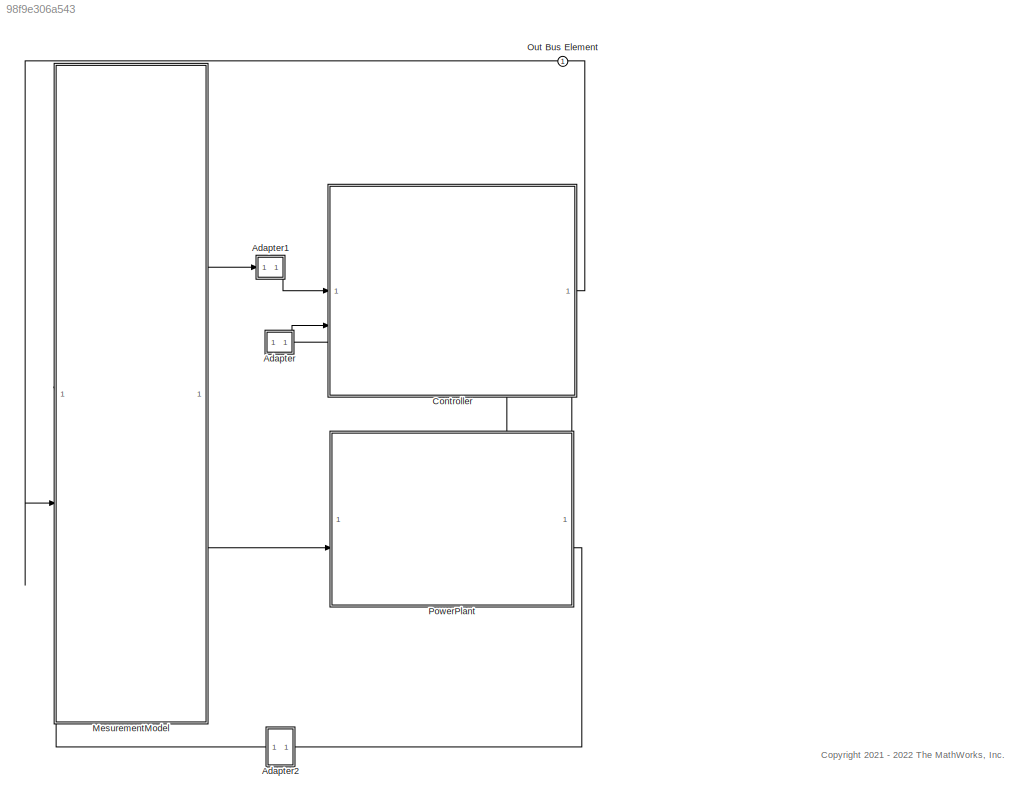
MODEL slx_98f9e306a543
KIND model
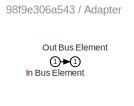
BLOCK [SubSystem] Adapter
  PortSchema = {"entries":[{"content":{"margin":10,"minimumSpacing":15,"sides":[{"content":{"connectorIds":["In1"]},"type":"ConnectorPlacement.EquallySpacedRectSide","uuid":"ac9d3c0d-de45-45d4-a027-00cc2bb40653"},{"content":{"connectorIds":["Out1"],"side":"RIGHT"},"type":"ConnectorPlacement.EquallySpacedRectSide","uuid":"e7d2f5f6-2525-4569-b306-92dbf51e1e04"},{"content":{"side":"TOP"},"type":"ConnectorPlacement....<+254ch>
BLOCK [Inport] Adapter/In Bus Element
BLOCK [Outport] Adapter/Out Bus Element
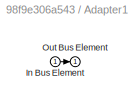
BLOCK [SubSystem] Adapter1
  PortSchema = {"entries":[{"content":{"margin":10,"minimumSpacing":15,"sides":[{"content":{"connectorIds":["In1"]},"type":"ConnectorPlacement.EquallySpacedRectSide","uuid":"ac9d3c0d-de45-45d4-a027-00cc2bb40653"},{"content":{"connectorIds":["Out1"],"side":"RIGHT"},"type":"ConnectorPlacement.EquallySpacedRectSide","uuid":"e7d2f5f6-2525-4569-b306-92dbf51e1e04"},{"content":{"side":"TOP"},"type":"ConnectorPlacement....<+254ch>
BLOCK [Inport] Adapter1/In Bus Element
BLOCK [Outport] Adapter1/Out Bus Element
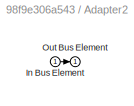
BLOCK [SubSystem] Adapter2
  PortSchema = {"entries":[{"content":{"margin":10,"minimumSpacing":15,"sides":[{"content":{"connectorIds":["Out1"]},"type":"ConnectorPlacement.EquallySpacedRectSide","uuid":"ac9d3c0d-de45-45d4-a027-00cc2bb40653"},{"content":{"connectorIds":["In1"],"side":"RIGHT"},"type":"ConnectorPlacement.EquallySpacedRectSide","uuid":"e7d2f5f6-2525-4569-b306-92dbf51e1e04"},{"content":{"side":"TOP"},"type":"ConnectorPlacement....<+254ch>
BLOCK [Inport] Adapter2/In Bus Element
BLOCK [Outport] Adapter2/Out Bus Element
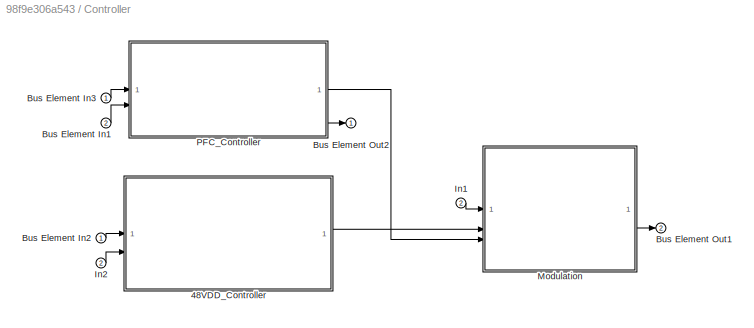
BLOCK [SubSystem] Controller
  PortSchema = {"entries":[{"content":{"headerSize":26,"margin":15,"minimumSpacing":25,"sides":[{"content":{"connectorIds":["In1","In2"]},"type":"ConnectorPlacement.EquallySpacedRectSide","uuid":"83593e86-a1ca-46ab-bb48-ac1b1e7f94a6"},{"content":{"connectorIds":["Out1","Out2"],"side":"RIGHT"},"type":"ConnectorPlacement.EquallySpacedRectSide","uuid":"814b1f5e-b094-459d-8c9a-0a4f126f7c52"},{"content":{"connectorId...<+301ch>
BLOCK [ModelReference] Controller/48VDD_Controller
  ModelNameDialog = x48VDD_Controller
  ModelReferenceVersion = 6.1
  PortSchema = {"entries":[{"content":{"headerSize":38,"margin":15,"minimumSpacing":25,"sides":[{"content":{"connectorIds":["In1","In2"]},"type":"ConnectorPlacement.EquallySpacedRectSide","uuid":"effce3b8-0d7f-4aa0-bb06-1db3c7ad72cd"},{"content":{"connectorIds":["Out1"],"side":"RIGHT"},"type":"ConnectorPlacement.EquallySpacedRectSide","uuid":"ff214e04-7c02-4f40-865f-6eb832682be6"},{"content":{"connectorIds":[],"...<+294ch>
BLOCK [Inport] Controller/Bus Element In1
  Port = 2
BLOCK [Inport] Controller/Bus Element In2
BLOCK [Inport] Controller/Bus Element In3
BLOCK [Outport] Controller/Bus Element Out1
  Port = 2
BLOCK [Outport] Controller/Bus Element Out2
BLOCK [Inport] Controller/In1
  Port = 2
BLOCK [Inport] Controller/In2
  Port = 2
BLOCK [ModelReference] Controller/Modulation
  ModelNameDialog = Modulation
  ModelReferenceVersion = 5.0
  PortSchema = {"entries":[{"content":{"headerSize":38,"margin":15,"minimumSpacing":25,"sides":[{"content":{"connectorIds":["In1","In3","In2"]},"type":"ConnectorPlacement.EquallySpacedRectSide","uuid":"38efb45f-a9c4-4617-9d8c-27c4cd9f3f1d"},{"content":{"connectorIds":["Out1"],"side":"RIGHT"},"type":"ConnectorPlacement.EquallySpacedRectSide","uuid":"11f6e9d9-e3f2-4ac6-90a7-b7d8cdb9c6c6"},{"content":{"connectorIds...<+300ch>
BLOCK [ModelReference] Controller/PFC_Controller
  ModelNameDialog = PFC_Controller
  ModelReferenceVersion = 6.1
  PortSchema = {"entries":[{"content":{"headerSize":38,"margin":15,"minimumSpacing":25,"sides":[{"content":{"connectorIds":["In1","In2"]},"type":"ConnectorPlacement.EquallySpacedRectSide","uuid":"effce3b8-0d7f-4aa0-bb06-1db3c7ad72cd"},{"content":{"connectorIds":["Out1","Out2"],"side":"RIGHT"},"type":"ConnectorPlacement.EquallySpacedRectSide","uuid":"ff214e04-7c02-4f40-865f-6eb832682be6"},{"content":{"connectorId...<+301ch>
BLOCK [ModelReference] MesurementModel
  ModelNameDialog = MesurementModel
  ModelReferenceVersion = 6.2
  PortSchema = {"entries":[{"content":{"headerSize":38,"margin":15,"minimumSpacing":25,"sides":[{"content":{"connectorIds":["In1","In2"]},"type":"ConnectorPlacement.EquallySpacedRectSide","uuid":"38efb45f-a9c4-4617-9d8c-27c4cd9f3f1d"},{"content":{"connectorIds":["Out1","Out2"],"side":"RIGHT"},"type":"ConnectorPlacement.EquallySpacedRectSide","uuid":"11f6e9d9-e3f2-4ac6-90a7-b7d8cdb9c6c6"},{"content":{"connectorId...<+301ch>
BLOCK [Outport] Out Bus Element
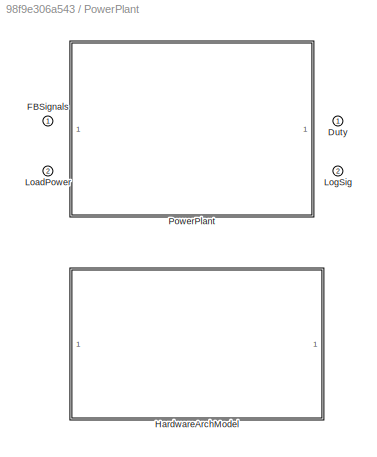
BLOCK [SubSystem] PowerPlant
  LabelModeActiveChoice = HardwareArch
  PortSchema = {"entries":[{"content":{"headerSize":38,"margin":15,"minimumSpacing":25,"sides":[{"content":{"connectorIds":["Out1","In2"]},"type":"ConnectorPlacement.EquallySpacedRectSide","uuid":"83593e86-a1ca-46ab-bb48-ac1b1e7f94a6"},{"content":{"connectorIds":["In1","Out2"],"side":"RIGHT"},"type":"ConnectorPlacement.EquallySpacedRectSide","uuid":"814b1f5e-b094-459d-8c9a-0a4f126f7c52"},{"content":{"connectorId...<+301ch>
  Variant = on
  VariantControl = Choice
  VariantControlMode = label
BLOCK [Inport] PowerPlant/Duty
BLOCK [Outport] PowerPlant/FBSignals
BLOCK [ModelReference] PowerPlant/HardwareArchModel
  ModelNameDialog = PlantArch
  ModelReferenceVersion = 5.0
  PortSchema = {"entries":[{"content":{"headerSize":38,"margin":15,"minimumSpacing":25,"sides":[{"content":{"connectorIds":["In1","In2"]},"type":"ConnectorPlacement.EquallySpacedRectSide","uuid":"d44c4823-d533-41b7-9bc3-fb81246a6aac"},{"content":{"connectorIds":["Out1","Out2"],"side":"RIGHT"},"type":"ConnectorPlacement.EquallySpacedRectSide","uuid":"f89a5651-3695-408a-bc6f-41b580c38d88"},{"content":{"connectorId...<+301ch>
  VariantControl = HardwareArch
BLOCK [Inport] PowerPlant/LoadPower
  Port = 2
BLOCK [Outport] PowerPlant/LogSig
  OutDataTypeStr = Bus: PlantSigLog
  Port = 2
BLOCK [ModelReference] PowerPlant/PowerPlant
  ModelNameDialog = PowerPlant
  ModelReferenceVersion = 5.0
  PortSchema = {"entries":[{"content":{"headerSize":38,"margin":15,"minimumSpacing":25,"sides":[{"content":{"connectorIds":["Out2","In2"]},"type":"ConnectorPlacement.EquallySpacedRectSide","uuid":"83593e86-a1ca-46ab-bb48-ac1b1e7f94a6"},{"content":{"connectorIds":["In1","Out1"],"side":"RIGHT"},"type":"ConnectorPlacement.EquallySpacedRectSide","uuid":"814b1f5e-b094-459d-8c9a-0a4f126f7c52"},{"content":{"connectorId...<+301ch>
  VariantControl = 1DModel
ANNOTATION (root): <copyright redacted>
LINE Adapter/In Bus Element:1 -> Adapter/Out Bus Element:1
LINE Adapter1/In Bus Element:1 -> Adapter1/Out Bus Element:1
LINE Adapter1:1 -> Controller:1
LINE Adapter2/In Bus Element:1 -> Adapter2/Out Bus Element:1
LINE Adapter2:1 -> MesurementModel:1
LINE Adapter:1 -> Controller:2
LINE Controller/48VDD_Controller:1 -> Controller/Modulation:2
LINE Controller/Bus Element In1:1 -> Controller/PFC_Controller:2
LINE Controller/Bus Element In2:1 -> Controller/48VDD_Controller:1
LINE Controller/Bus Element In3:1 -> Controller/PFC_Controller:1
LINE Controller/In1:1 -> Controller/Modulation:1
LINE Controller/In2:1 -> Controller/48VDD_Controller:2
LINE Controller/Modulation:1 -> Controller/Bus Element Out1:1
LINE Controller/PFC_Controller:1 -> Controller/Modulation:3
LINE Controller/PFC_Controller:2 -> Controller/Bus Element Out2:1
LINE Controller:1 -> MesurementModel:2
LINE Controller:2 -> PowerPlant:1
LINE MesurementModel:1 -> Adapter1:1
LINE MesurementModel:2 -> PowerPlant:2
LINE PowerPlant:1 -> Adapter:1
LINE PowerPlant:2 -> Adapter2:1
